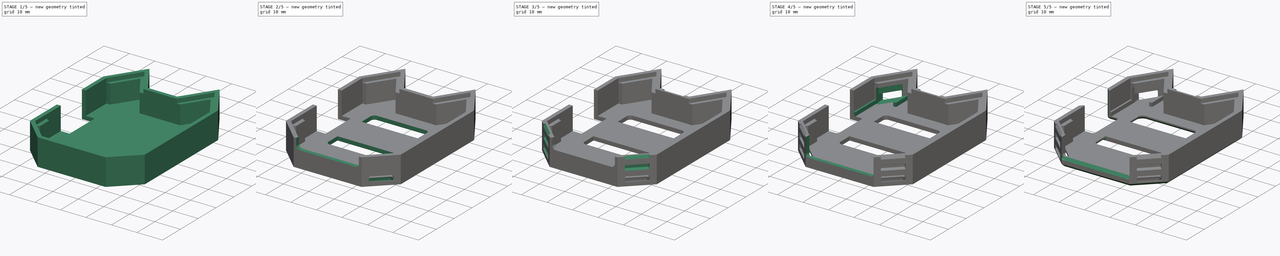
[diagram: build sequence overview — one tinted view per stage of 5, left to right]
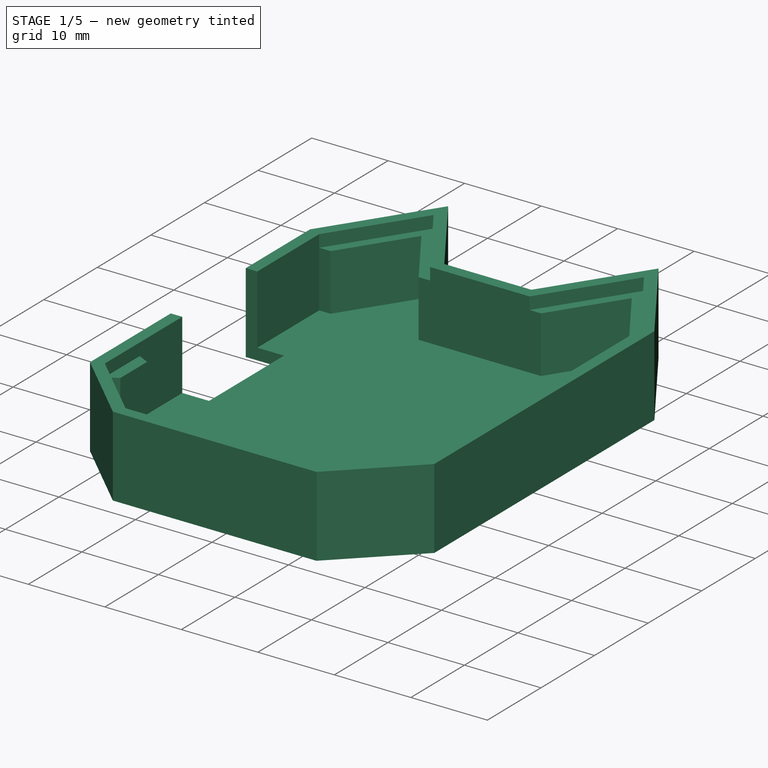
[diagram: stage 1 of 5 — iso view after this stage's code; geometry added in this stage tinted green]
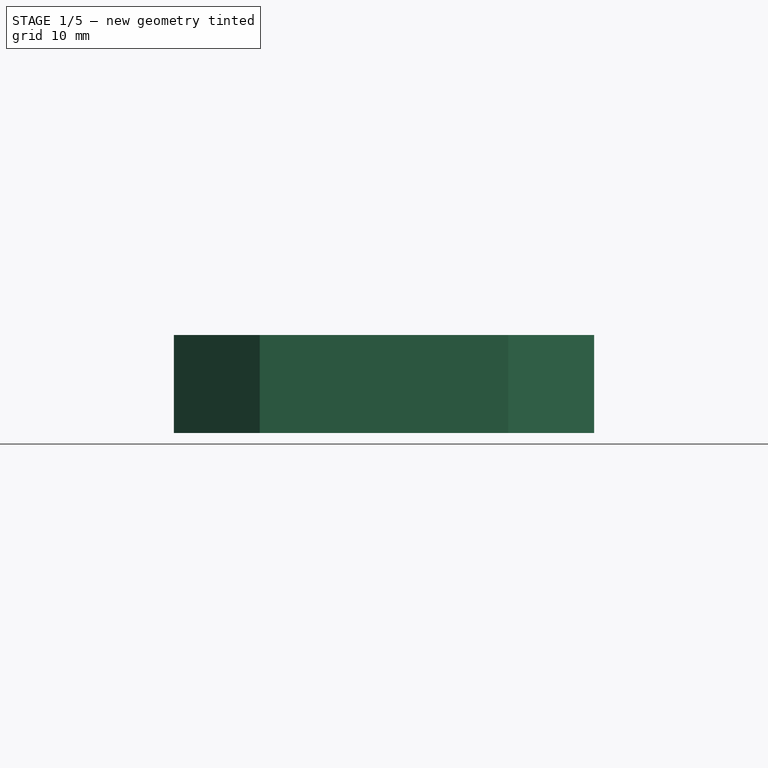
[diagram: stage 1 of 5 — front view after this stage's code; geometry added in this stage tinted green]
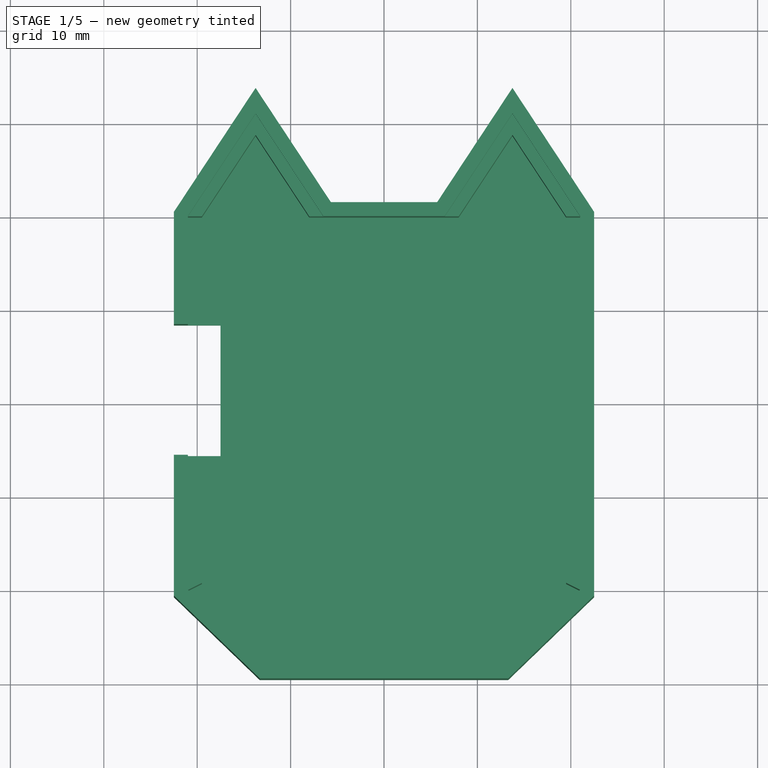
[diagram: stage 1 of 5 — top view after this stage's code; geometry added in this stage tinted green]
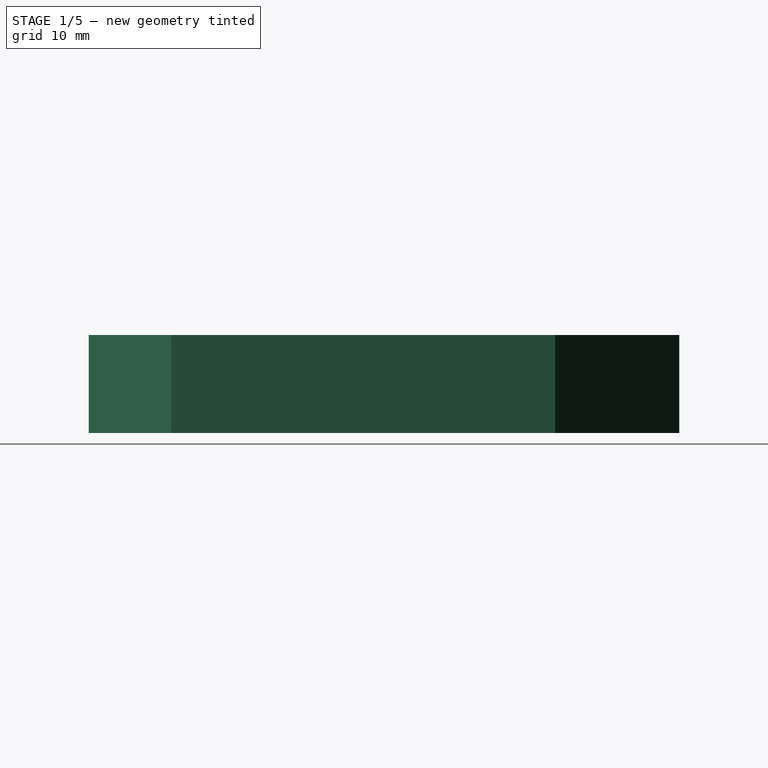
[diagram: stage 1 of 5 — right view after this stage's code; geometry added in this stage tinted green]
FCSTD DOCUMENT  (FreeCAD 0.20R29410 (Git))
Label: v1.0_Case-Bottom_v3-Nugget
License: All rights reserved
LicenseURL: http://en.wikipedia.org/wiki/All_rights_reserved
objects: Sketcher::SketchObject×15, Part::Feature×15, App::Part×11, PartDesign::Pocket×10, PartDesign::Pad×4, PartDesign::Plane×4, PartDesign::Chamfer×4, PartDesign::Mirrored×2, PartDesign::Groove×1, PartDesign::Fillet×1, PartDesign::Body×1
note: 77 computed .brp shape members not serialized (recipe doc carries the construction recipe); baked Part::Feature solids carry a one-line shape summary decoded from their .brp

FEATURE [Sketcher::SketchObject] Sketch
  FullyConstrained = false
  sketch-geometry (22):
    g0: LineSegment StartX=-21 StartY=20 StartZ=0 EndX=-13.75 EndY=31 EndZ=0
    g1: LineSegment StartX=-13.75 StartY=31 StartZ=0 EndX=-6.5 EndY=20 EndZ=0
    g2: LineSegment StartX=-6.5 StartY=20 StartZ=0 EndX=6.5 EndY=20 EndZ=0
    g3: LineSegment StartX=6.5 StartY=20 StartZ=0 EndX=13.75 EndY=31 EndZ=0
    g4: LineSegment StartX=13.75 StartY=31 StartZ=0 EndX=21 EndY=20 EndZ=0
    g5: LineSegment StartX=21 StartY=20 StartZ=0 EndX=21 EndY=-20 EndZ=0
    g6: LineSegment StartX=21 StartY=-20 StartZ=0 EndX=12.7 EndY=-28 EndZ=0
    g7: LineSegment StartX=12.7 StartY=-28 StartZ=0 EndX=-12.7 EndY=-28 EndZ=0
    g8: LineSegment StartX=-12.7 StartY=-28 StartZ=0 EndX=-21 EndY=-20 EndZ=0
    g9: LineSegment StartX=-21 StartY=-20 StartZ=0 EndX=-21 EndY=20 EndZ=0
    g10: LineSegment StartX=-22.5 StartY=20.4499 StartZ=0 EndX=-13.75 EndY=33.7257 EndZ=0
    g11: LineSegment StartX=-13.75 StartY=33.7257 StartZ=0 EndX=-5.69214 EndY=21.5 EndZ=0
    g12: LineSegment StartX=-5.69214 StartY=21.5 StartZ=0 EndX=5.69214 EndY=21.5 EndZ=0
    g13: LineSegment StartX=5.69214 StartY=21.5 StartZ=0 EndX=13.75 EndY=33.7257 EndZ=0
    g14: LineSegment StartX=13.75 StartY=33.7257 StartZ=0 EndX=22.5 EndY=20.4499 EndZ=0
    g15: LineSegment StartX=22.5 StartY=20.4499 StartZ=0 EndX=22.5 EndY=-20.6376 EndZ=0
    g16: LineSegment StartX=22.5 StartY=-20.6376 StartZ=0 EndX=13.3052 EndY=-29.5 EndZ=0
    g17: LineSegment StartX=13.3052 StartY=-29.5 StartZ=0 EndX=-13.3052 EndY=-29.5 EndZ=0
    g18: LineSegment StartX=-13.3052 StartY=-29.5 StartZ=0 EndX=-22.5 EndY=-20.6376 EndZ=0
    g19: LineSegment StartX=-22.5 StartY=-20.6376 StartZ=0 EndX=-22.5 EndY=20.4499 EndZ=0
    g20: LineSegment StartX=-13.741 StartY=-29.08 StartZ=0 EndX=-12.7 EndY=-28 EndZ=0
    g21: LineSegment StartX=-13.75 StartY=31 StartZ=0 EndX=-12.4976 EndY=31.8255 EndZ=0
  constraints (60):
    c: Coincident(g0,g1)
    c: Coincident(g1,g2)
    c: Coincident(g2,g3)
    c: Coincident(g3,g4)
    c: Coincident(g4,g5)
    c: Vertical(g5)
    c: Coincident(g5,g6)
    c: Coincident(g6,g7)
    c: Coincident(g7,g8)
    c: Coincident(g8,g9)
    c: Coincident(g9,g0)
    c: DistanceY(g9,g9) = 40
    c: DistanceY(g7,g0) = 59
    c: DistanceY(g6,g5) = 8
    c: DistanceX(g2,g2) = 13
    c: DistanceX(g6,g5) = 8.3
    c: Equal(g5,g9)
    c: Equal(g0,g1)
    c: Equal(g1,g3)
    c: Equal(g3,g4)
    c: Symmetric(g2,g1,g-2)
    c: Symmetric(g7,g6,g-2)
    c: Symmetric(g0,g4,g-2)
    c: Horizontal(g2,g4)
    c: DistanceX(g8,g5) = 42
    c: Symmetric(g0,g8,g-1)
    c: Coincident(g10,g11)
    c: Coincident(g11,g12)
    c: Coincident(g12,g13)
    c: Coincident(g13,g14)
    c: Coincident(g14,g15)
    c: Coincident(g15,g16)
    c: Coincident(g16,g17)
    c: Coincident(g17,g18)
    c: Coincident(g18,g19)
    c: Coincident(g19,g10)
    c: Parallel(g10,g0)
    c: Vertical(g19)
    c: Parallel(g4,g14)
    c: Vertical(g15)
    c: Parallel(g18,g8)
    c: Parallel(g6,g16)
    c: Symmetric(g11,g12,g-2)
    c: Symmetric(g17,g16,g-2)
    c: Equal(g19,g15)
    c: Equal(g16,g18)
    c: DistanceX(g18,g8) = 1.5
    c: DistanceY(g17,g7) = 1.5
    c: Perpendicular(g18,g20)
    c: PointOnObject(g20,g18)
    c: Distance(g20) = 1.5
    c: Coincident(g20,g7)
    c: PointOnObject(g21,g11)
    c: Perpendicular(g1,g21)
    c: Distance(g21) = 1.5
    c: Horizontal(g13,g10)
    c: Vertical(g10,g0)
    c: DistanceY(g1,g11) = 1.5
    c: Parallel(g1,g11)
    c: Coincident(g21,g0)
FEATURE [PartDesign::Pad] Pad
  AllowMultiFace = false
  Direction = (0,0,1)
  Length = 10.5
  Length2 = 100
  Profile = -> Sketch
  Type = 0
FEATURE [Sketcher::SketchObject] CopySketch001
  FullyConstrained = true
  MapMode = 5
  Placement = pos=(0,0,10.5) rot=(0,0,1;0rad)
  Support = -> [Pad]
  sketch-geometry (10):
    g0: LineSegment StartX=-21 StartY=20 StartZ=0 EndX=-13.75 EndY=31 EndZ=0
    g1: LineSegment StartX=-13.75 StartY=31 StartZ=0 EndX=-6.5 EndY=20 EndZ=0
    g2: LineSegment StartX=-6.5 StartY=20 StartZ=0 EndX=6.5 EndY=20 EndZ=0
    g3: LineSegment StartX=6.5 StartY=20 StartZ=0 EndX=13.75 EndY=31 EndZ=0
    g4: LineSegment StartX=13.75 StartY=31 StartZ=0 EndX=21 EndY=20 EndZ=0
    g5: LineSegment StartX=21 StartY=20 StartZ=0 EndX=21 EndY=-20 EndZ=0
    g6: LineSegment StartX=21 StartY=-20 StartZ=0 EndX=12.7 EndY=-28 EndZ=0
    g7: LineSegment StartX=12.7 StartY=-28 StartZ=0 EndX=-12.7 EndY=-28 EndZ=0
    g8: LineSegment StartX=-12.7 StartY=-28 StartZ=0 EndX=-21 EndY=-20 EndZ=0
    g9: LineSegment StartX=-21 StartY=-20 StartZ=0 EndX=-21 EndY=20 EndZ=0
  constraints (26):
    c: Coincident(g0,g1)
    c: Coincident(g1,g2)
    c: Coincident(g2,g3)
    c: Coincident(g3,g4)
    c: Coincident(g4,g5)
    c: Vertical(g5)
    c: Coincident(g5,g6)
    c: Coincident(g6,g7)
    c: Coincident(g7,g8)
    c: Coincident(g8,g9)
    c: Coincident(g9,g0)
    c: DistanceY(g9,g9) = 40
    c: DistanceY(g7,g0) = 59
    c: DistanceY(g6,g5) = 8
    c: DistanceX(g2,g2) = 13
    c: DistanceX(g6,g5) = 8.3
    c: Equal(g5,g9)
    c: Equal(g0,g1)
    c: Equal(g1,g3)
    c: Equal(g3,g4)
    c: Symmetric(g2,g1,g-2)
    c: Symmetric(g7,g6,g-2)
    c: Symmetric(g0,g4,g-2)
    c: Horizontal(g2,g4)
    c: DistanceX(g8,g5) = 42
    c: Symmetric(g0,g8,g-1)
FEATURE [PartDesign::Pocket] Pocket
  AllowMultiFace = false
  BaseFeature = -> Pad
  Direction = (0,0,-1)
  Length = 9
  Length2 = 100
  Profile = -> CopySketch001
  Type = 0
FEATURE [Sketcher::SketchObject] Sketch001
  ExternalGeometry = -> [Pocket]
  FullyConstrained = true
  MapMode = 5
  Placement = pos=(0,0,1.5) rot=(0,0,1;0rad)
  Support = -> [Pocket]
  sketch-geometry (22):
    g0: LineSegment StartX=-21 StartY=20 StartZ=0 EndX=-13.75 EndY=31 EndZ=0
    g1: LineSegment StartX=-13.75 StartY=31 StartZ=0 EndX=-6.5 EndY=20 EndZ=0
    g2: LineSegment StartX=-6.5 StartY=20 StartZ=0 EndX=-8 EndY=20 EndZ=0
    g3: LineSegment StartX=-8 StartY=20 StartZ=0 EndX=-13.75 EndY=28.7241 EndZ=0
    g4: LineSegment StartX=-13.75 StartY=28.7241 StartZ=0 EndX=-19.5 EndY=20 EndZ=0
    g5: LineSegment StartX=-19.5 StartY=20 StartZ=0 EndX=-21 EndY=20 EndZ=0
    g6: LineSegment StartX=6.5 StartY=20 StartZ=0 EndX=13.75 EndY=31 EndZ=0
    g7: LineSegment StartX=13.75 StartY=31 StartZ=0 EndX=21 EndY=20 EndZ=0
    g8: LineSegment StartX=21 StartY=20 StartZ=0 EndX=19.5 EndY=20 EndZ=0
    g9: LineSegment StartX=19.5 StartY=20 StartZ=0 EndX=13.75 EndY=28.7241 EndZ=0
    g10: LineSegment StartX=13.75 StartY=28.7241 StartZ=0 EndX=8 EndY=20 EndZ=0
    g11: LineSegment StartX=8 StartY=20 StartZ=0 EndX=6.5 EndY=20 EndZ=0
    g12: LineSegment StartX=-21 StartY=-13.5 StartZ=0 EndX=-21 EndY=-20 EndZ=0
    g13: LineSegment StartX=-21 StartY=-20 StartZ=0 EndX=-19.5 EndY=-19.25 EndZ=0
    g14: LineSegment StartX=-19.5 StartY=-19.25 StartZ=0 EndX=-19.5 EndY=-14.25 EndZ=0
    g15: LineSegment StartX=-19.5 StartY=-14.25 StartZ=0 EndX=-21 EndY=-13.5 EndZ=0
    g16: LineSegment StartX=19.5 StartY=-14.25 StartZ=0 EndX=21 EndY=-13.5 EndZ=0
    g17: LineSegment StartX=21 StartY=-13.5 StartZ=0 EndX=21 EndY=-20 EndZ=0
    g18: LineSegment StartX=21 StartY=-20 StartZ=0 EndX=19.5 EndY=-19.25 EndZ=0
    g19: LineSegment StartX=19.5 StartY=-19.25 StartZ=0 EndX=19.5 EndY=-14.25 EndZ=0
    g20: LineSegment StartX=-21 StartY=-16.75 StartZ=0 EndX=-19.5 EndY=-16.75 EndZ=0
    g21: LineSegment StartX=19.5 StartY=-16.75 StartZ=0 EndX=21 EndY=-16.75 EndZ=0
  constraints (59):
    c: Coincident(g0,g1)
    c: Coincident(g1,g2)
    c: Horizontal(g2)
    c: Coincident(g2,g3)
    c: Coincident(g3,g4)
    c: Coincident(g4,g5)
    c: Coincident(g5,g0)
    c: Coincident(g6,g7)
    c: Coincident(g7,g8)
    c: Coincident(g8,g9)
    c: Coincident(g9,g10)
    c: Coincident(g10,g11)
    c: Coincident(g11,g6)
    c: Horizontal(g5)
    c: Horizontal(g11)
    c: Horizontal(g8)
    c: Equal(g4,g3)
    c: Equal(g3,g9)
    c: Equal(g9,g10)
    c: Equal(g7,g6)
    c: Equal(g6,g1)
    c: Equal(g1,g0)
    c: Horizontal(g4,g1)
    c: Horizontal(g10,g8)
    c: Equal(g5,g2)
    c: Equal(g2,g11)
    c: Equal(g11,g8)
    c: Parallel(g1,g3)
    c: Parallel(g9,g7)
    c: Coincident(g0,g-4)
    c: DistanceX(g11,g11) = 1.5
    c: Symmetric(g1,g6,g-2)
    c: Coincident(g-4,g1)
    c: Vertical(g12)
    c: Coincident(g12,g13)
    c: Coincident(g13,g14)
    c: Vertical(g14)
    c: Coincident(g14,g15)
    c: Coincident(g15,g12)
    c: Coincident(g16,g17)
    c: Vertical(g17)
    c: Coincident(g17,g18)
    c: Coincident(g18,g19)
    c: Coincident(g19,g16)
    c: Vertical(g19)
    c: Symmetric(g12,g12,g20)
    c: Symmetric(g14,g13,g20)
    c: Symmetric(g16,g18,g21)
    c: Symmetric(g17,g16,g21)
    c: Horizontal(g21)
    c: Horizontal(g20)
    c: Equal(g19,g14)
    c: Equal(g17,g12)
    c: Equal(g20,g21)
    c: Symmetric(g21,g20,g-2)
    c: Coincident(g17,g-3)
    c: DistanceX(g21,g21) = 1.5
    c: DistanceY(g17,g17) = 6.5
    c: DistanceY(g19,g19) = 5
FEATURE [PartDesign::Pad] Pad001
  AllowMultiFace = false
  BaseFeature = -> Pocket
  Direction = (0,0,1)
  Length = 7.4
  Length2 = 100
  Profile = -> Sketch001
  Type = 0
FEATURE [Sketcher::SketchObject] Sketch007
  FullyConstrained = true
  MapMode = 5
  Placement = pos=(0,0,0) rot=(1,0,0;3.14159rad)
  sketch-geometry (18):
    g0: LineSegment StartX=-11.73 StartY=11.5 StartZ=0 EndX=7.27 EndY=11.5 EndZ=0
    g1: LineSegment StartX=8.77 StartY=10 StartZ=0 EndX=8.77 EndY=5 EndZ=0
    g2: LineSegment StartX=8.77 StartY=5 StartZ=0 EndX=-13.23 EndY=5 EndZ=0
    g3: LineSegment StartX=-13.23 StartY=5 StartZ=0 EndX=-13.23 EndY=10 EndZ=0
    g4: LineSegment StartX=-13.23 StartY=-8.5 StartZ=0 EndX=8.77 EndY=-8.5 EndZ=0
    g5: LineSegment StartX=8.77 StartY=-8.5 StartZ=0 EndX=8.77 EndY=-13.5 EndZ=0
    g6: LineSegment StartX=7.27 StartY=-15 StartZ=0 EndX=-11.73 EndY=-15 EndZ=0
    g7: LineSegment StartX=-13.23 StartY=-13.5 StartZ=0 EndX=-13.23 EndY=-8.5 EndZ=0
    g8: GeomPoint X=8.77 Y=8.25 Z=0
    g9: GeomPoint X=8.77 Y=-11.75 Z=0
    g10: ArcOfCircle CenterX=-11.73 CenterY=10 CenterZ=0 NormalX=0 NormalY=0 NormalZ=1 AngleXU=0 Radius=1.5 StartAngle=1.5708 EndAngle=3.14159
    g11: GeomPoint X=-13.23 Y=11.5 Z=0
    g12: ArcOfCircle CenterX=7.27 CenterY=10 CenterZ=0 NormalX=0 NormalY=0 NormalZ=1 AngleXU=0 Radius=1.5 StartAngle=0 EndAngle=1.5708
    g13: GeomPoint X=8.77 Y=11.5 Z=0
    g14: ArcOfCircle CenterX=-11.73 CenterY=-13.5 CenterZ=0 NormalX=0 NormalY=0 NormalZ=1 AngleXU=0 Radius=1.5 StartAngle=3.14159 EndAngle=4.71239
    g15: GeomPoint X=-13.23 Y=-15 Z=0
    g16: ArcOfCircle CenterX=7.27 CenterY=-13.5 CenterZ=0 NormalX=0 NormalY=0 NormalZ=1 AngleXU=0 Radius=1.5 StartAngle=4.71239 EndAngle=6.28319
    g17: GeomPoint X=8.77 Y=-15 Z=0
  constraints (42):
    c: Coincident(g1,g2)
    c: Coincident(g2,g3)
    c: Horizontal(g0)
    c: Horizontal(g2)
    c: Vertical(g1)
    c: Vertical(g3)
    c: Coincident(g4,g5)
    c: Coincident(g7,g4)
    c: Horizontal(g4)
    c: Horizontal(g6)
    c: Vertical(g5)
    c: Vertical(g7)
    c: Equal(g4,g2)
    c: DistanceX(g4,g4) = 22
    c: Vertical(g4,g1)
    c: DistanceY(g17,g5) = 6.5
    c: Symmetric(g4,g17,g9)
    c: Symmetric(g1,g13,g8)
    c: DistanceY(g9,g8) = 20
    c: DistanceY(g-1,g1) = 5
    c: DistanceX(g2,g-1) = 13.23
    c: PointOnObject(g11,g3)
    c: PointOnObject(g11,g0)
    c: Tangent(g3,g10) = 1.5708
    c: Tangent(g0,g10) = 1.5708
    c: PointOnObject(g13,g0)
    c: PointOnObject(g13,g1)
    c: Tangent(g0,g12) = 1.5708
    c: Tangent(g1,g12) = 1.5708
    c: PointOnObject(g15,g7)
    c: PointOnObject(g15,g6)
    c: Tangent(g7,g14) = 1.5708
    c: Tangent(g6,g14) = 1.5708
    c: PointOnObject(g17,g5)
    c: PointOnObject(g17,g6)
    c: Tangent(g5,g16) = 1.5708
    c: Tangent(g6,g16) = 1.5708
    c: Equal(g12,g10)
    c: Equal(g10,g14)
    c: Equal(g14,g16)
    c: Radius(g12) = 1.5
    c: Equal(g7,g3)
FEATURE [Sketcher::SketchObject] Sketch006
  ExternalGeometry = -> [Pad001]
  FullyConstrained = true
  MapMode = 5
  Placement = pos=(-22.5,0,0) rot=(0.57735,-0.57735,-0.57735;2.0944rad)
  sketch-geometry (5):
    g0: LineSegment StartX=-1.44986 StartY=0 StartZ=0 EndX=-1.44986 EndY=10.5 EndZ=0
    g1: LineSegment StartX=-8.44986 StartY=10.5 StartZ=0 EndX=5.55014 EndY=10.5 EndZ=0
    g2: LineSegment StartX=5.55014 StartY=10.5 StartZ=0 EndX=5.55014 EndY=0 EndZ=0
    g3: LineSegment StartX=5.55014 StartY=0 StartZ=0 EndX=-8.44986 EndY=0 EndZ=0
    g4: LineSegment StartX=-8.44986 StartY=0 StartZ=0 EndX=-8.44986 EndY=10.5 EndZ=0
  constraints (15):
    c: PointOnObject(g0,g-1)
    c: Vertical(g0)
    c: Coincident(g1,g2)
    c: Coincident(g4,g1)
    c: Horizontal(g1)
    c: Horizontal(g3)
    c: Vertical(g2)
    c: Vertical(g4)
    c: Symmetric(g1,g1,g0)
    c: PointOnObject(g0,g-3)
    c: DistanceX(g1,g1) = 14
    c: PointOnObject(g3,g-1)
    c: Coincident(g3,g2)
    c: Coincident(g4,g3)
    c: DistanceX(g-3,g1) = 12
FEATURE [PartDesign::Pocket] Pocket001
  BaseFeature = -> Pad001
  Direction = (1,0,0)
  Length = 5
  Length2 = 100
  Profile = -> Sketch006
  Type = 0
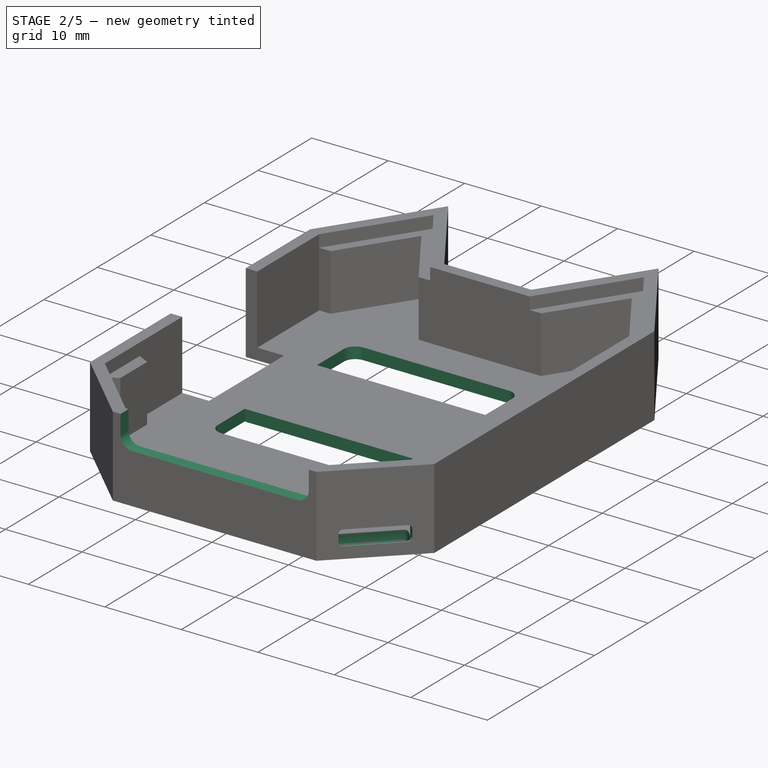
[diagram: stage 2 of 5 — iso view after this stage's code; geometry added in this stage tinted green]
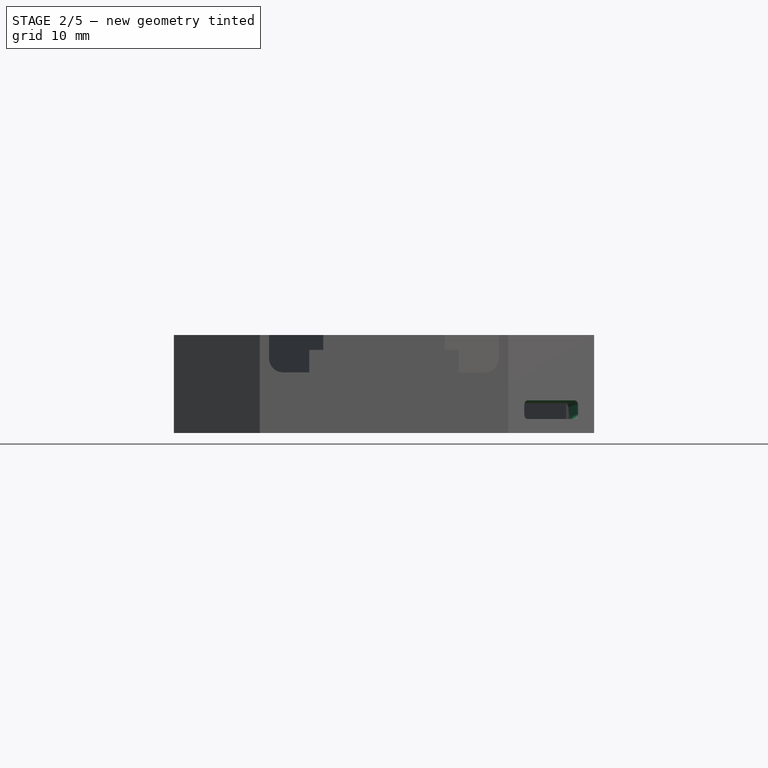
[diagram: stage 2 of 5 — front view after this stage's code; geometry added in this stage tinted green]
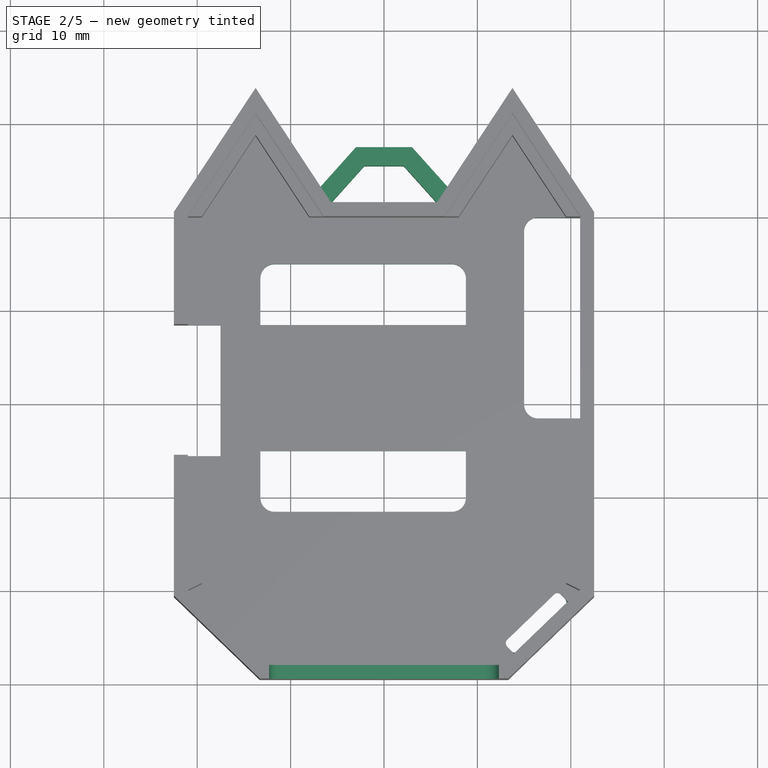
[diagram: stage 2 of 5 — top view after this stage's code; geometry added in this stage tinted green]
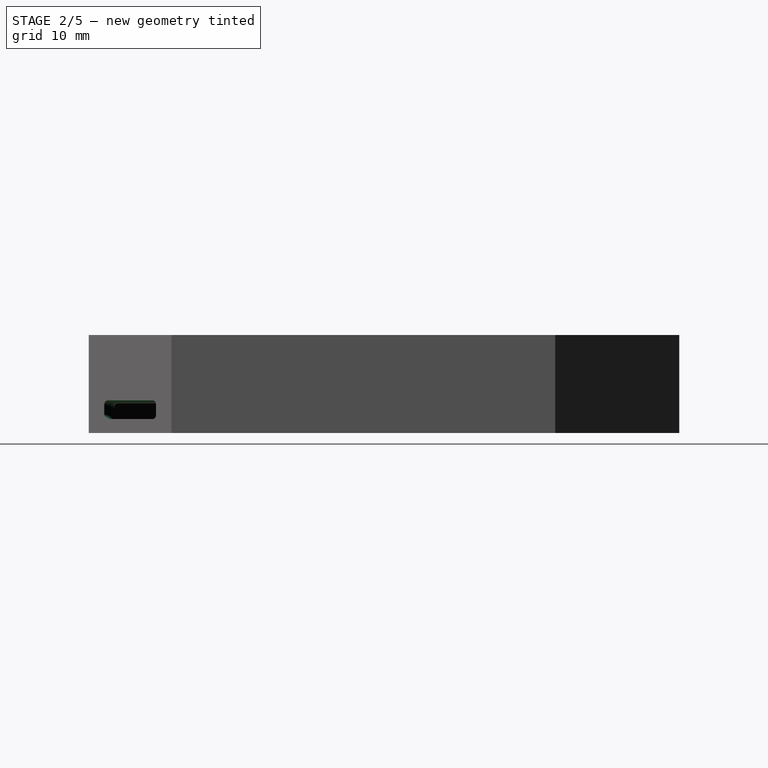
[diagram: stage 2 of 5 — right view after this stage's code; geometry added in this stage tinted green]
FEATURE [Sketcher::SketchObject] Sketch008
  ExternalGeometry = -> [Pocket001]
  FullyConstrained = true
  MapMode = 5
  Placement = pos=(0,0,0) rot=(1,0,0;3.14159rad)
  sketch-geometry (8):
    g0: LineSegment StartX=21 StartY=-20 StartZ=0 EndX=16.5 EndY=-20 EndZ=0
    g1: LineSegment StartX=15 StartY=-18.5 StartZ=0 EndX=15 EndY=0 EndZ=0
    g2: LineSegment StartX=16.5 StartY=1.5 StartZ=0 EndX=21 EndY=1.5 EndZ=0
    g3: LineSegment StartX=21 StartY=1.5 StartZ=0 EndX=21 EndY=-20 EndZ=0
    g4: ArcOfCircle CenterX=16.5 CenterY=3e-16 CenterZ=0 NormalX=0 NormalY=0 NormalZ=1 AngleXU=0 Radius=1.5 StartAngle=1.5708 EndAngle=3.14159
    g5: GeomPoint X=15 Y=1.5 Z=0
    g6: ArcOfCircle CenterX=16.5 CenterY=-18.5 CenterZ=0 NormalX=0 NormalY=0 NormalZ=1 AngleXU=0 Radius=1.5 StartAngle=3.14159 EndAngle=4.71239
    g7: GeomPoint X=15 Y=-20 Z=0
  constraints (20):
    c: Coincident(g2,g3)
    c: Coincident(g3,g0)
    c: Horizontal(g0)
    c: Horizontal(g2)
    c: Vertical(g1)
    c: Vertical(g3)
    c: DistanceY(g7,g5) = 21.5
    c: DistanceX(g5,g2) = 6
    c: DistanceY(g-1,g5) = 1.5
    c: DistanceX(g-1,g5) = 15
    c: PointOnObject(g5,g1)
    c: PointOnObject(g5,g2)
    c: Tangent(g1,g4) = 1.5708
    c: Tangent(g2,g4) = 1.5708
    c: PointOnObject(g7,g1)
    c: PointOnObject(g7,g0)
    c: Tangent(g1,g6) = 1.5708
    c: Tangent(g0,g6) = 1.5708
    c: Equal(g6,g4)
    c: Radius(g6) = 1.5
FEATURE [PartDesign::Pocket] Pocket002
  BaseFeature = -> Pocket001
  Direction = (0,0,1)
  Length = 5
  Length2 = 100
  Profile = -> Sketch008
  Type = 0
FEATURE [PartDesign::Pocket] Pocket003
  BaseFeature = -> Pocket002
  Direction = (0,0,1)
  Length = 5
  Length2 = 100
  Profile = -> Sketch007
  Type = 0
FEATURE [PartDesign::Plane] DatumPlane001
  Length = 60
  MapMode = 5
  Placement = pos=(0,0,0) rot=(1,0,0;3.14159rad)
  ResizeMode = 0
  Width = 60
FEATURE [Sketcher::SketchObject] Sketch017
  ExternalGeometry = -> [Pocket003]
  FullyConstrained = true
  MapMode = 5
  Placement = pos=(0,0,0) rot=(1,0,0;3.14159rad)
  Support = -> [DatumPlane001]
  sketch-geometry (10):
    g0: LineSegment StartX=-5.69214 StartY=-21.5 StartZ=0 EndX=-6.83022 EndY=-23.2267 EndZ=0
    g1: LineSegment StartX=-6.83022 StartY=-23.2267 StartZ=0 EndX=-3 EndY=-27.5 EndZ=0
    g2: LineSegment StartX=-3 StartY=-27.5 StartZ=0 EndX=3 EndY=-27.5 EndZ=0
    g3: LineSegment StartX=3 StartY=-27.5 StartZ=0 EndX=6.83022 EndY=-23.2267 EndZ=0
    g4: LineSegment StartX=6.83022 StartY=-23.2267 StartZ=0 EndX=5.69214 EndY=-21.5 EndZ=0
    g5: LineSegment StartX=5.69214 StartY=-21.5 StartZ=0 EndX=2.10684 EndY=-25.5 EndZ=0
    g6: LineSegment StartX=2.10684 StartY=-25.5 StartZ=0 EndX=-2.10684 EndY=-25.5 EndZ=0
    g7: LineSegment StartX=-2.10684 StartY=-25.5 StartZ=0 EndX=-5.69214 EndY=-21.5 EndZ=0
    g8: LineSegment StartX=2.10684 StartY=-27.5 StartZ=0 EndX=2.10684 EndY=-25.5 EndZ=0
    g9: LineSegment StartX=2.10684 StartY=-25.5 StartZ=0 EndX=3.59614 EndY=-26.8349 EndZ=0
  constraints (26):
    c: Coincident(g0,g1)
    c: Coincident(g1,g2)
    c: Coincident(g2,g3)
    c: Coincident(g3,g4)
    c: Coincident(g4,g5)
    c: Coincident(g5,g6)
    c: Coincident(g6,g7)
    c: Coincident(g7,g0)
    c: Symmetric(g6,g5,g-2)
    c: Symmetric(g1,g2,g-2)
    c: Parallel(g4,g-3)
    c: Parallel(g0,g-4)
    c: Symmetric(g4,g0,g-2)
    c: Parallel(g3,g5)
    c: Coincident(g8,g5)
    c: Coincident(g9,g5)
    c: PointOnObject(g8,g2)
    c: PointOnObject(g9,g3)
    c: Equal(g9,g8)
    c: Parallel(g1,g7)
    c: Vertical(g8)
    c: DistanceY(g8,g8) = 2
    c: DistanceX(g2,g2) = 6
    c: Coincident(g0,g-4)
    c: DistanceY(g5,g4) = 4
    c: Perpendicular(g5,g9)
FEATURE [PartDesign::Pad] Pad002
  BaseFeature = -> Pocket003
  Direction = (0,0,-1)
  Length = 4
  Length2 = 100
  Profile = -> Sketch017
  Reversed = true
  Type = 0
FEATURE [Sketcher::SketchObject] Sketch018
  ExternalGeometry = -> [Pad002]
  FullyConstrained = true
  MapMode = 5
  Placement = pos=(0,-29.5,0) rot=(1,0,0;1.5708rad)
  Support = -> [Pad002]
  sketch-geometry (8):
    g0: LineSegment StartX=-12.3052 StartY=10.5 StartZ=0 EndX=12.3052 EndY=10.5 EndZ=0
    g1: LineSegment StartX=12.3052 StartY=10.5 StartZ=0 EndX=12.3052 EndY=8 EndZ=0
    g2: LineSegment StartX=10.8052 StartY=6.5 StartZ=0 EndX=-10.8052 EndY=6.5 EndZ=0
    g3: LineSegment StartX=-12.3052 StartY=8 StartZ=0 EndX=-12.3052 EndY=10.5 EndZ=0
    g4: ArcOfCircle CenterX=-10.8052 CenterY=8 CenterZ=0 NormalX=0 NormalY=0 NormalZ=1 AngleXU=0 Radius=1.5 StartAngle=3.14159 EndAngle=4.71239
    g5: GeomPoint X=-12.3052 Y=6.5 Z=0
    g6: ArcOfCircle CenterX=10.8052 CenterY=8 CenterZ=0 NormalX=0 NormalY=0 NormalZ=1 AngleXU=0 Radius=1.5 StartAngle=4.71239 EndAngle=6.28319
    g7: GeomPoint X=12.3052 Y=6.5 Z=0
  constraints (19):
    c: Coincident(g0,g1)
    c: Coincident(g3,g0)
    c: Horizontal(g2)
    c: Vertical(g1)
    c: Vertical(g3)
    c: PointOnObject(g5,g3)
    c: PointOnObject(g5,g2)
    c: Tangent(g3,g4) = 1.5708
    c: Tangent(g2,g4) = 1.5708
    c: PointOnObject(g7,g1)
    c: PointOnObject(g7,g2)
    c: Tangent(g1,g6) = 1.5708
    c: Tangent(g2,g6) = 1.5708
    c: Equal(g6,g4)
    c: Radius(g4) = 1.5
    c: Symmetric(g0,g0,g-2)
    c: Horizontal(g0,g-3)
    c: DistanceX(g0,g-3) = 1
    c: DistanceY(g2,g0) = 4
FEATURE [PartDesign::Pocket] Pocket004
  BaseFeature = -> Pad002
  Direction = (0,1,-2e-16)
  Length = 5
  Length2 = 5
  Profile = -> Sketch018
  ReferenceAxis = -> Sketch018 [N_Axis]
  Type = 0
FEATURE [Sketcher::SketchObject] Sketch019
  ExternalGeometry = -> [Pocket004]
  FullyConstrained = true
  MapMode = 5
  Placement = pos=(21.1478,-21.9409,0) rot=(0.868554,0.350439,0.350439;1.71126rad)
  Support = -> [Pocket004]
  sketch-geometry (14):
    g0: LineSegment StartX=-8.00725 StartY=3.5 StartZ=0 EndX=-1.00725 EndY=3.5 EndZ=0
    g1: LineSegment StartX=-0.507245 StartY=3 StartZ=0 EndX=-0.507245 EndY=2 EndZ=0
    g2: LineSegment StartX=-1.00725 StartY=1.5 StartZ=0 EndX=-8.00725 EndY=1.5 EndZ=0
    g3: LineSegment StartX=-8.50725 StartY=2 StartZ=0 EndX=-8.50725 EndY=3 EndZ=0
    g4: ArcOfCircle CenterX=-8.00725 CenterY=3 CenterZ=0 NormalX=0 NormalY=0 NormalZ=1 AngleXU=0 Radius=0.5 StartAngle=1.5708 EndAngle=3.14159
    g5: GeomPoint X=-8.50725 Y=3.5 Z=0
    g6: ArcOfCircle CenterX=-1.00725 CenterY=3 CenterZ=0 NormalX=0 NormalY=0 NormalZ=1 AngleXU=0 Radius=0.5 StartAngle=0 EndAngle=1.5708
    g7: GeomPoint X=-0.507245 Y=3.5 Z=0
    g8: ArcOfCircle CenterX=-1.00725 CenterY=2 CenterZ=0 NormalX=0 NormalY=0 NormalZ=1 AngleXU=0 Radius=0.5 StartAngle=4.71239 EndAngle=6.28319
    g9: GeomPoint X=-0.507245 Y=1.5 Z=0
    g10: ArcOfCircle CenterX=-8.00725 CenterY=2 CenterZ=0 NormalX=0 NormalY=0 NormalZ=1 AngleXU=0 Radius=0.5 StartAngle=3.14159 EndAngle=4.71239
    g11: GeomPoint X=-8.50725 Y=1.5 Z=0
    g12: GeomPoint X=-4.50725 Y=2.5 Z=0
    g13: GeomPoint X=-4.50725 Y=-3e-16 Z=0
  constraints (30):
    c: Horizontal(g0)
    c: Horizontal(g2)
    c: Vertical(g1)
    c: Vertical(g3)
    c: PointOnObject(g5,g3)
    c: PointOnObject(g5,g0)
    c: Tangent(g3,g4) = 1.5708
    c: Tangent(g0,g4) = 1.5708
    c: PointOnObject(g7,g0)
    c: PointOnObject(g7,g1)
    c: Tangent(g0,g6) = 1.5708
    c: Tangent(g1,g6) = 1.5708
    c: PointOnObject(g9,g1)
    c: PointOnObject(g9,g2)
    c: Tangent(g1,g8) = 1.5708
    c: Tangent(g2,g8) = 1.5708
    c: PointOnObject(g11,g3)
    c: PointOnObject(g11,g2)
    c: Tangent(g3,g10) = 1.5708
    c: Tangent(g2,g10) = 1.5708
    c: Equal(g10,g4)
    c: Equal(g4,g6)
    c: Equal(g6,g8)
    c: Radius(g6) = 0.5
    c: DistanceY(g2,g0) = 2
    c: Symmetric(g8,g4,g12)
    c: Symmetric(g-3,g-3,g13)
    c: Vertical(g12,g13)
    c: DistanceY(g-1,g2) = 1.5
    c: DistanceX(g5,g7) = 8
FEATURE [PartDesign::Groove] Groove
  Angle = 360
  Axis = (0.719999,0.693975,-1e-16)
  Base = (21.1478,-21.9409,0)
  BaseFeature = -> Pocket004
  Profile = -> Sketch019
  ReferenceAxis = -> Sketch019 [H_Axis]
  Reversed = true
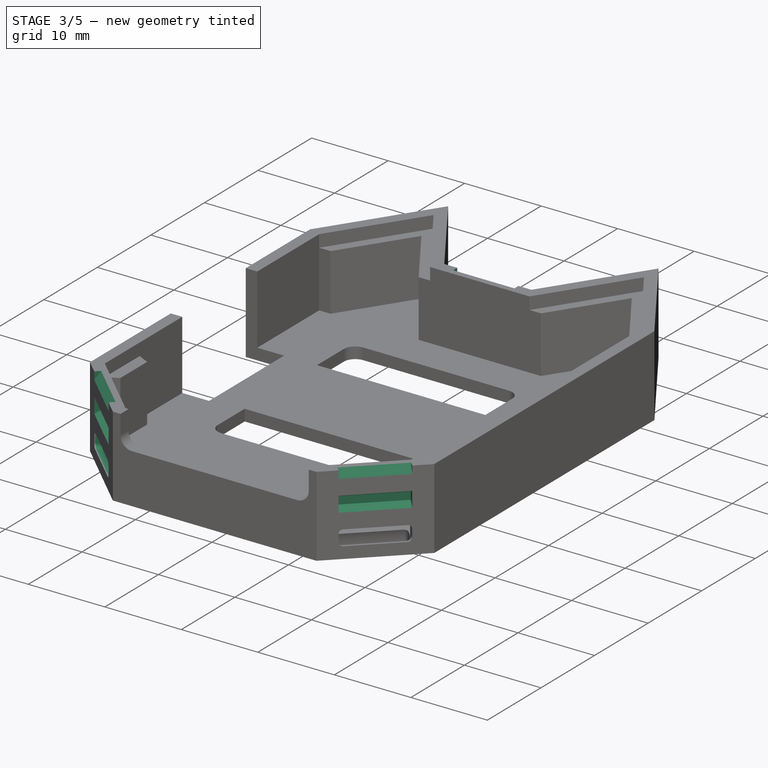
[diagram: stage 3 of 5 — iso view after this stage's code; geometry added in this stage tinted green]
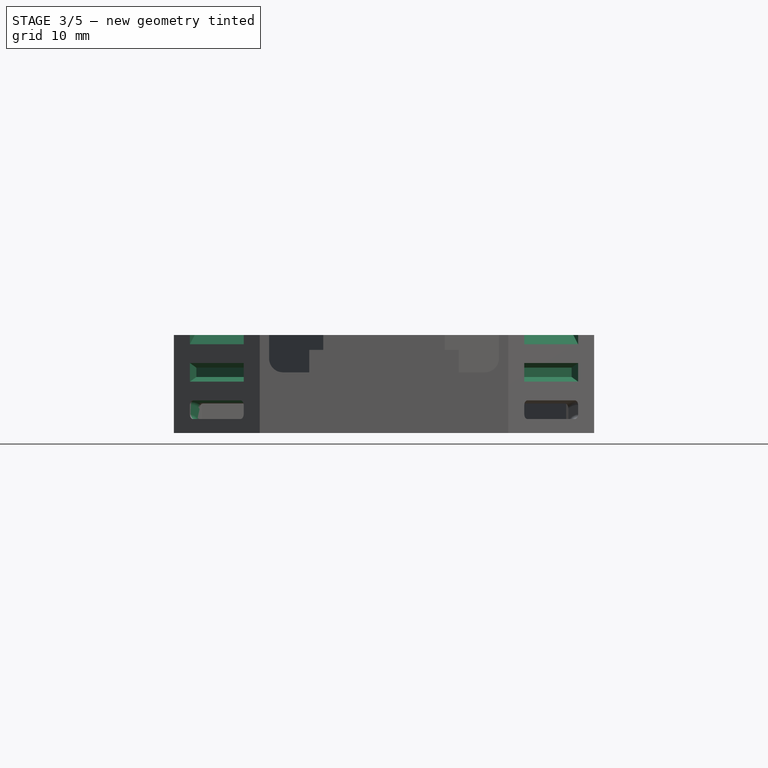
[diagram: stage 3 of 5 — front view after this stage's code; geometry added in this stage tinted green]
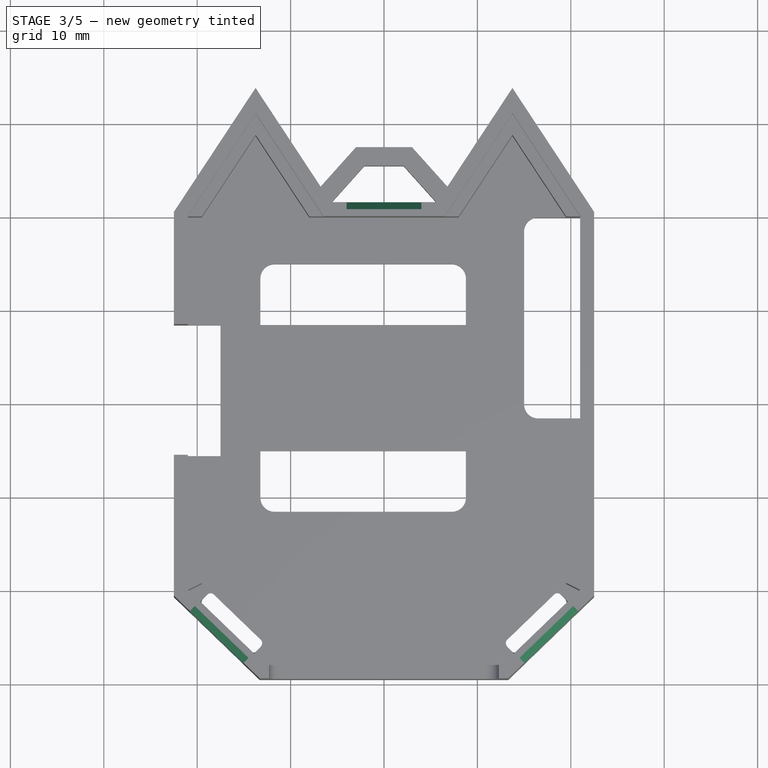
[diagram: stage 3 of 5 — top view after this stage's code; geometry added in this stage tinted green]
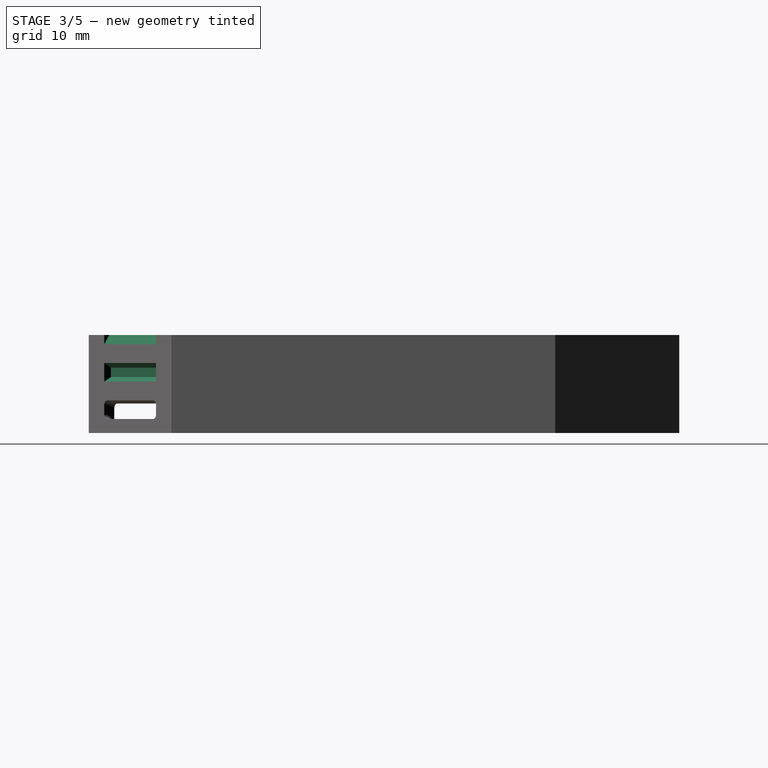
[diagram: stage 3 of 5 — right view after this stage's code; geometry added in this stage tinted green]
FEATURE [PartDesign::Mirrored] Mirrored
  BaseFeature = -> Groove
  MirrorPlane = -> YZ_Plane
  Originals = -> [Groove]
FEATURE [PartDesign::Plane] DatumPlane
  Length = 74.4708
  MapMode = 45
  Placement = pos=(1.3e-15,20,10.5) rot=(0.57735,0.57735,0.57735;2.0944rad)
  ResizeMode = 0
  Support = -> [Mirrored]
  Width = 61.2451
FEATURE [Sketcher::SketchObject] Sketch020
  ExternalGeometry = -> [Mirrored]
  FullyConstrained = true
  MapMode = 5
  Placement = pos=(1.3e-15,20,10.5) rot=(0.57735,0.57735,0.57735;2.0944rad)
  Support = -> [DatumPlane]
  sketch-geometry (8):
    g0: LineSegment StartX=1.5 StartY=-3 StartZ=0 EndX=1.5 EndY=-5 EndZ=0
    g1: LineSegment StartX=1.5 StartY=-5 StartZ=0 EndX=0.5 EndY=-4.5 EndZ=0
    g2: LineSegment StartX=0.5 StartY=-4.5 StartZ=0 EndX=0.5 EndY=-3.5 EndZ=0
    g3: LineSegment StartX=0.5 StartY=-3.5 StartZ=0 EndX=1.5 EndY=-3 EndZ=0
    g4: LineSegment StartX=0.5 StartY=-4 StartZ=0 EndX=1.5 EndY=-4 EndZ=0
    g5: LineSegment StartX=0.75 StartY=0 StartZ=0 EndX=1.5 EndY=0 EndZ=0
    g6: LineSegment StartX=1.5 StartY=-1 StartZ=0 EndX=0.75 EndY=0 EndZ=0
    g7: LineSegment StartX=1.5 StartY=0 StartZ=0 EndX=1.5 EndY=-1 EndZ=0
  constraints (22):
    c: Vertical(g0)
    c: Coincident(g0,g1)
    c: Coincident(g1,g2)
    c: Vertical(g2)
    c: Coincident(g2,g3)
    c: Coincident(g3,g0)
    c: DistanceX(g4,g4) = 1
    c: Symmetric(g2,g1,g4)
    c: Symmetric(g0,g0,g4)
    c: Horizontal(g4)
    c: DistanceY(g0,g0) = 2
    c: DistanceY(g2,g2) = 1
    c: DistanceY(g0,g-3) = 3
    c: Horizontal(g5)
    c: Coincident(g6,g5)
    c: Coincident(g7,g5)
    c: Coincident(g7,g6)
    c: Vertical(g7)
    c: DistanceY(g7,g7) = 1
    c: Vertical(g6,g0)
    c: DistanceX(g5,g5) = 0.75
    c: Coincident(g5,g-4)
FEATURE [PartDesign::Pocket] Pocket005
  BaseFeature = -> Mirrored
  Direction = (-1,4e-16,0)
  Length = 8
  Length2 = 5
  Midplane = true
  Profile = -> Sketch020
  ReferenceAxis = -> Sketch020 [N_Axis]
  Type = 0
FEATURE [PartDesign::Plane] DatumPlane002
  Length = 92.8878
  MapMode = 45
  Placement = pos=(17.9026,-25.0688,10.5) rot=(0.287827,0.677184,0.677184;2.58109rad)
  ResizeMode = 0
  Support = -> [Pocket005]
  Width = 62.6666
FEATURE [Sketcher::SketchObject] Sketch021
  FullyConstrained = true
  MapMode = 5
  Placement = pos=(17.9026,-25.0688,10.5) rot=(0.287827,0.677184,0.677184;2.58109rad)
  Support = -> [DatumPlane002]
  sketch-geometry (8):
    g0: LineSegment StartX=0 StartY=-3 StartZ=0 EndX=0 EndY=-5 EndZ=0
    g1: LineSegment StartX=0 StartY=-5 StartZ=0 EndX=1 EndY=-4.5 EndZ=0
    g2: LineSegment StartX=1 StartY=-4.5 StartZ=0 EndX=1 EndY=-3.5 EndZ=0
    g3: LineSegment StartX=1 StartY=-3.5 StartZ=0 EndX=0 EndY=-3 EndZ=0
    g4: LineSegment StartX=0 StartY=0 StartZ=0 EndX=0 EndY=-1 EndZ=0
    g5: LineSegment StartX=0 StartY=-1 StartZ=0 EndX=0.75 EndY=0 EndZ=0
    g6: LineSegment StartX=0.75 StartY=0 StartZ=0 EndX=0 EndY=0 EndZ=0
    g7: LineSegment StartX=1e-16 StartY=-4 StartZ=0 EndX=1 EndY=-4 EndZ=0
  constraints (22):
    c: Vertical(g0)
    c: Coincident(g0,g1)
    c: Coincident(g1,g2)
    c: Vertical(g2)
    c: Coincident(g2,g3)
    c: Coincident(g3,g0)
    c: Vertical(g4)
    c: Coincident(g4,g5)
    c: Coincident(g5,g6)
    c: Coincident(g6,g4)
    c: Horizontal(g7)
    c: DistanceX(g7,g7) = 1
    c: DistanceY(g2,g2) = 1
    c: DistanceY(g0,g0) = 2
    c: Symmetric(g2,g1,g7)
    c: Symmetric(g0,g0,g7)
    c: Horizontal(g6)
    c: DistanceX(g6,g6) = 0.75
    c: DistanceY(g4,g4) = 1
    c: Vertical(g4,g0)
    c: DistanceY(g0,g-1) = 3
    c: Coincident(g4,g-1)
FEATURE [PartDesign::Pocket] Pocket006
  BaseFeature = -> Pocket005
  Direction = (-0.719999,-0.693975,0)
  Length = 8
  Length2 = 5
  Midplane = true
  Profile = -> Sketch021
  ReferenceAxis = -> Sketch021 [N_Axis]
  Type = 0
FEATURE [PartDesign::Mirrored] Mirrored001
  BaseFeature = -> Pocket006
  MirrorPlane = -> YZ_Plane
  Originals = -> [Pocket006]
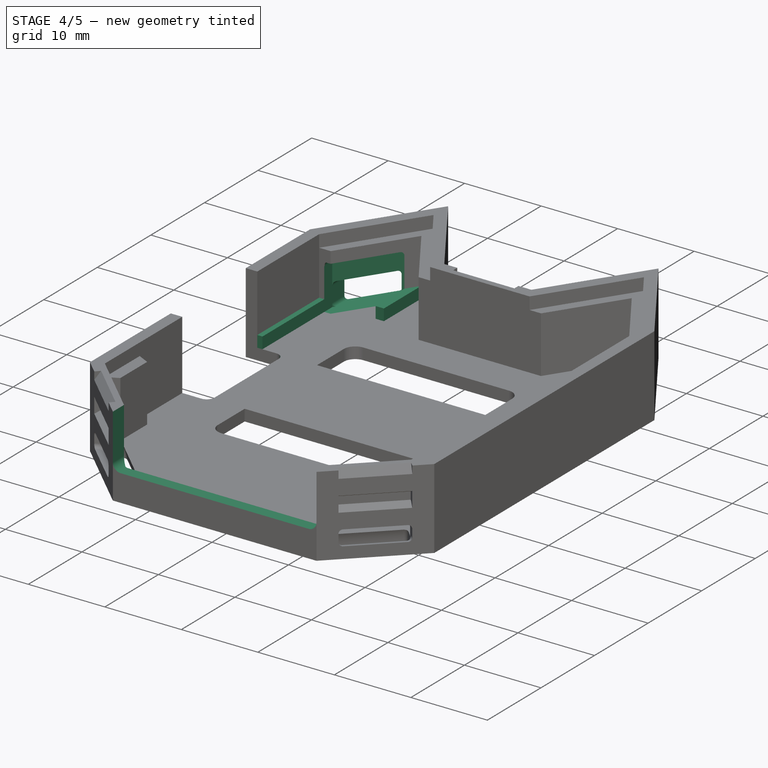
[diagram: stage 4 of 5 — iso view after this stage's code; geometry added in this stage tinted green]
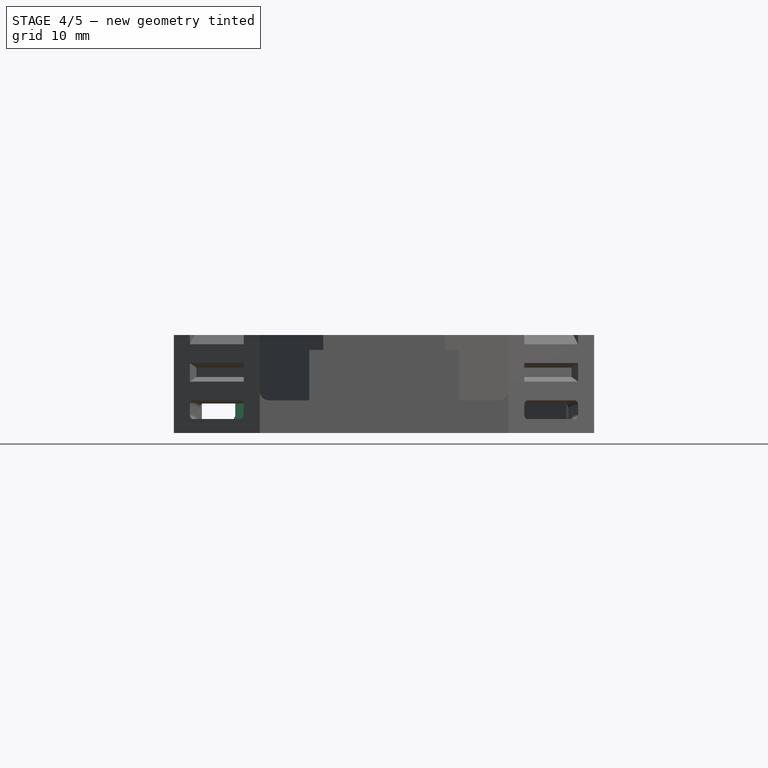
[diagram: stage 4 of 5 — front view after this stage's code; geometry added in this stage tinted green]
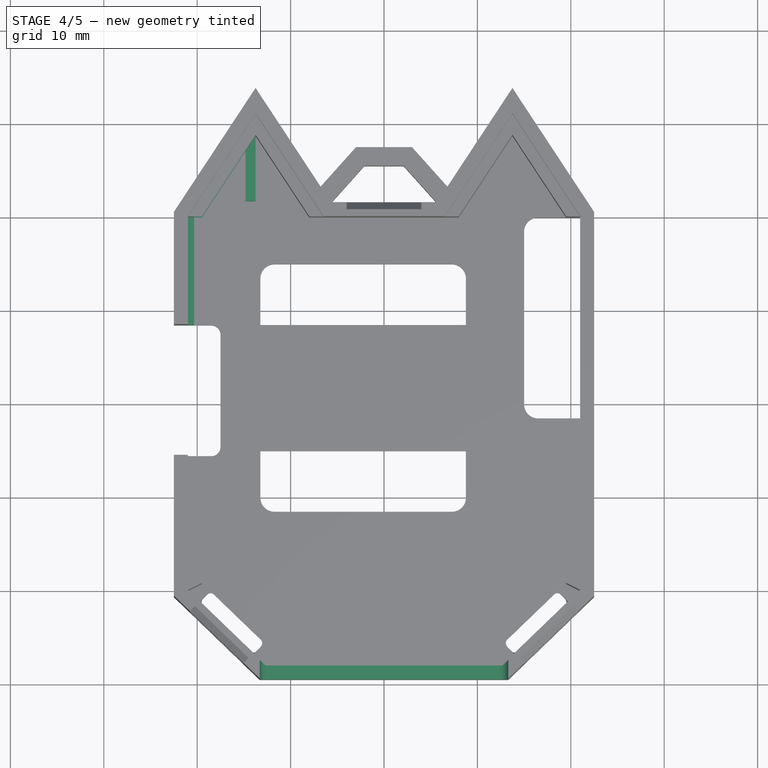
[diagram: stage 4 of 5 — top view after this stage's code; geometry added in this stage tinted green]
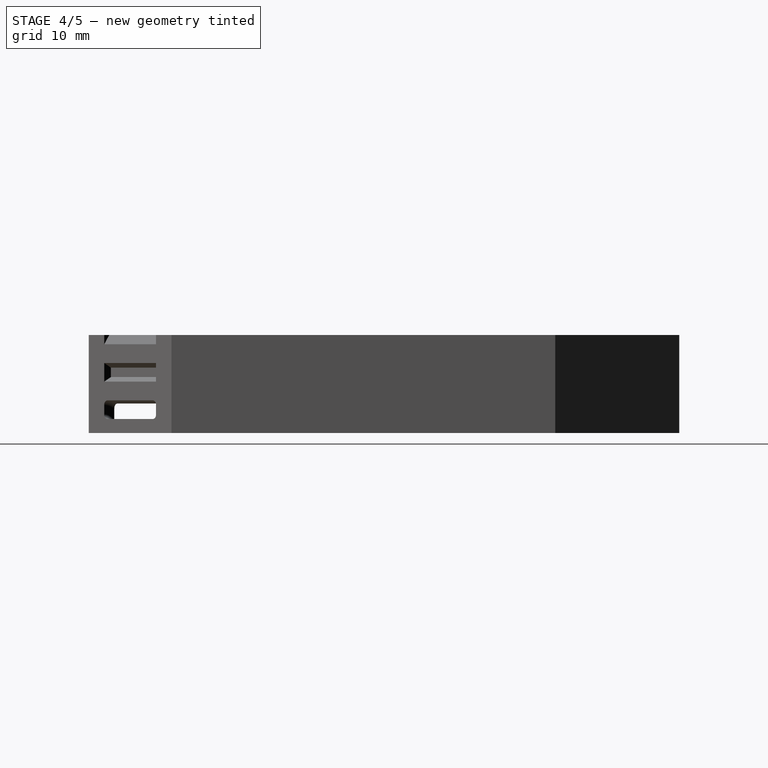
[diagram: stage 4 of 5 — right view after this stage's code; geometry added in this stage tinted green]
FEATURE [PartDesign::Plane] DatumPlane003
  Length = 92.5164
  MapMode = 7
  Placement = pos=(20.2621,-21.7529,10.5) rot=(-0.274352,0.679975,0.679975;3.67712rad)
  ResizeMode = 0
  Support = -> [Mirrored001]
  Width = 62.6394
FEATURE [Sketcher::SketchObject] Sketch022
  ExternalGeometry = -> [Mirrored001]
  FullyConstrained = true
  MapMode = 5
  Placement = pos=(-25.0825,16.5316,0) rot=(-0.355895,0.66081,0.66081;3.82543rad)
  Support = -> [Mirrored001]
  sketch-geometry (14):
    g0: LineSegment StartX=-16.1427 StartY=4.5 StartZ=0 EndX=-9.14274 EndY=4.5 EndZ=0
    g1: LineSegment StartX=-8.64274 StartY=4 StartZ=0 EndX=-8.64274 EndY=2 EndZ=0
    g2: LineSegment StartX=-9.14274 StartY=1.5 StartZ=0 EndX=-16.1427 EndY=1.5 EndZ=0
    g3: LineSegment StartX=-16.6427 StartY=2 StartZ=0 EndX=-16.6427 EndY=4 EndZ=0
    g4: ArcOfCircle CenterX=-16.1427 CenterY=4 CenterZ=0 NormalX=0 NormalY=0 NormalZ=1 AngleXU=0 Radius=0.5 StartAngle=1.5708 EndAngle=3.14159
    g5: GeomPoint X=-16.6427 Y=4.5 Z=0
    g6: ArcOfCircle CenterX=-16.1427 CenterY=2 CenterZ=0 NormalX=0 NormalY=0 NormalZ=1 AngleXU=0 Radius=0.5 StartAngle=3.14159 EndAngle=4.71239
    g7: GeomPoint X=-16.6427 Y=1.5 Z=0
    g8: ArcOfCircle CenterX=-9.14274 CenterY=2 CenterZ=0 NormalX=0 NormalY=0 NormalZ=1 AngleXU=0 Radius=0.5 StartAngle=4.71239 EndAngle=6.28319
    g9: GeomPoint X=-8.64274 Y=1.5 Z=0
    g10: ArcOfCircle CenterX=-9.14274 CenterY=4 CenterZ=0 NormalX=0 NormalY=0 NormalZ=1 AngleXU=0 Radius=0.5 StartAngle=-9e-16 EndAngle=1.5708
    g11: GeomPoint X=-8.64274 Y=4.5 Z=0
    g12: GeomPoint X=-12.6427 Y=3 Z=0
    g13: GeomPoint X=-12.6427 Y=2.3e-15 Z=0
  constraints (30):
    c: Horizontal(g0)
    c: Horizontal(g2)
    c: Vertical(g1)
    c: Vertical(g3)
    c: DistanceY(g9,g11) = 3
    c: DistanceX(g5,g11) = 8
    c: PointOnObject(g5,g3)
    c: PointOnObject(g5,g0)
    c: Tangent(g3,g4) = 1.5708
    c: Tangent(g0,g4) = 1.5708
    c: PointOnObject(g7,g3)
    c: PointOnObject(g7,g2)
    c: Tangent(g3,g6) = 1.5708
    c: Tangent(g2,g6) = 1.5708
    c: PointOnObject(g9,g2)
    c: PointOnObject(g9,g1)
    c: Tangent(g2,g8) = 1.5708
    c: Tangent(g1,g8) = 1.5708
    c: PointOnObject(g11,g0)
    c: PointOnObject(g11,g1)
    c: Tangent(g0,g10) = 1.5708
    c: Tangent(g1,g10) = 1.5708
    c: Equal(g10,g8)
    c: Equal(g8,g4)
    c: Equal(g4,g6)
    c: Radius(g10) = 0.5
    c: Symmetric(g10,g6,g12)
    c: Vertical(g13,g12)
    c: Symmetric(g-4,g-3,g13)
    c: DistanceY(g13,g2) = 1.5
FEATURE [PartDesign::Pocket] Pocket007
  BaseFeature = -> Mirrored001
  Direction = (0,-1,0)
  Length = 5
  Length2 = 5
  Profile = -> Sketch022
  ReferenceAxis = -> Mirrored001 [Edge61]
  Type = 0
FEATURE [Sketcher::SketchObject] Sketch023
  ExternalGeometry = -> [Pocket007]
  FullyConstrained = true
  MapMode = 5
  Placement = pos=(-22.7843,15.0169,0) rot=(0.795526,0.42845,0.42845;1.79758rad)
  Support = -> [Pocket007]
  sketch-geometry (11):
    g0: GeomPoint X=9.46663 Y=3 Z=0
    g1: GeomPoint X=12.4666 Y=3 Z=0
    g2: LineSegment StartX=14.4666 StartY=1.5 StartZ=0 EndX=4.46663 EndY=1.5 EndZ=0
    g3: LineSegment StartX=4.46663 StartY=1.5 StartZ=0 EndX=4.46663 EndY=6.9 EndZ=0
    g4: LineSegment StartX=4.96663 StartY=7.4 StartZ=0 EndX=13.9666 EndY=7.4 EndZ=0
    g5: LineSegment StartX=14.4666 StartY=6.9 StartZ=0 EndX=14.4666 EndY=1.5 EndZ=0
    g6: ArcOfCircle CenterX=4.96663 CenterY=6.9 CenterZ=0 NormalX=0 NormalY=0 NormalZ=1 AngleXU=0 Radius=0.5 StartAngle=1.5708 EndAngle=3.14159
    g7: GeomPoint X=4.46663 Y=7.4 Z=0
    g8: ArcOfCircle CenterX=13.9666 CenterY=6.9 CenterZ=0 NormalX=0 NormalY=0 NormalZ=1 AngleXU=0 Radius=0.5 StartAngle=1.21e-14 EndAngle=1.5708
    g9: GeomPoint X=14.4666 Y=7.4 Z=0
    g10: GeomPoint X=9.46663 Y=1.5 Z=0
  constraints (24):
    c: Symmetric(g-3,g-3,g1)
    c: DistanceX(g0,g1) = 3
    c: Horizontal(g1,g0)
    c: Coincident(g2,g3)
    c: Coincident(g5,g2)
    c: Horizontal(g2)
    c: Horizontal(g4)
    c: Vertical(g3)
    c: Vertical(g5)
    c: PointOnObject(g7,g3)
    c: PointOnObject(g7,g4)
    c: Tangent(g3,g6) = 1.5708
    c: Tangent(g4,g6) = 1.5708
    c: PointOnObject(g9,g4)
    c: PointOnObject(g9,g5)
    c: Tangent(g4,g8) = 1.5708
    c: Tangent(g5,g8) = 1.5708
    c: Equal(g8,g6)
    c: Radius(g8) = 0.5
    c: DistanceX(g2,g2) = 10
    c: Symmetric(g2,g2,g10)
    c: Vertical(g10,g0)
    c: PointOnObject(g2,g-4)
    c: DistanceY(g4,g-6) = 1.5
FEATURE [PartDesign::Pocket] Pocket008
  BaseFeature = -> Pocket007
  Direction = (0,-1,0)
  Length = 1.5
  Length2 = 5
  Profile = -> Sketch023
  ReferenceAxis = -> Pocket007 [Edge65]
  Reversed = true
  Type = 0
FEATURE [Sketcher::SketchObject] Sketch024
  ExternalGeometry = -> [Pocket008]
  FullyConstrained = true
  MapMode = 5
  Placement = pos=(0,0,1.5) rot=(0,0,1;0rad)
  Support = -> [Pocket008]
  sketch-geometry (8):
    g0: LineSegment StartX=-20.3263 StartY=20 StartZ=0 EndX=-21 EndY=20 EndZ=0
    g1: LineSegment StartX=-21 StartY=20 StartZ=0 EndX=-21 EndY=8.44986 EndZ=0
    g2: LineSegment StartX=-21 StartY=8.44986 StartZ=0 EndX=-20.3263 EndY=8.44986 EndZ=0
    g3: LineSegment StartX=-20.3263 StartY=8.44986 StartZ=0 EndX=-20.3263 EndY=20 EndZ=0
    g4: LineSegment StartX=-14.8231 StartY=27.096 StartZ=0 EndX=-13.75 EndY=28.7241 EndZ=0
    g5: LineSegment StartX=-13.75 StartY=28.7241 StartZ=0 EndX=-13.75 EndY=21.7241 EndZ=0
    g6: LineSegment StartX=-13.75 StartY=21.7241 StartZ=0 EndX=-14.8231 EndY=21.7241 EndZ=0
    g7: LineSegment StartX=-14.8231 StartY=21.7241 StartZ=0 EndX=-14.8231 EndY=27.096 EndZ=0
  constraints (20):
    c: Coincident(g0,g1)
    c: Coincident(g1,g2)
    c: Coincident(g2,g3)
    c: Coincident(g3,g0)
    c: Horizontal(g0)
    c: Horizontal(g2)
    c: Vertical(g1)
    c: Vertical(g3)
    c: Coincident(g-3,g0)
    c: Coincident(g1,g-4)
    c: Coincident(g4,g5)
    c: Coincident(g5,g6)
    c: Coincident(g6,g7)
    c: Coincident(g7,g4)
    c: Coincident(g-5,g4)
    c: Coincident(g-5,g4)
    c: Vertical(g5)
    c: Vertical(g7)
    c: Horizontal(g6)
    c: DistanceY(g5,g5) = 7
FEATURE [PartDesign::Pad] Pad003
  BaseFeature = -> Pocket008
  Direction = (0,0,1)
  Length = 1.5
  Length2 = 10
  Profile = -> Sketch024
  ReferenceAxis = -> Sketch024 [N_Axis]
  Type = 0
FEATURE [PartDesign::Fillet] Fillet
  Base = -> Pad003 [Edge114,Edge113]
  BaseFeature = -> Pad003
  Radius = 1
  SupportTransform = false
  UseAllEdges = false
FEATURE [Sketcher::SketchObject] Sketch025
  ExternalGeometry = -> [Fillet]
  FullyConstrained = true
  MapMode = 5
  Placement = pos=(0,-29.5,0) rot=(1,0,0;1.5708rad)
  Support = -> [Fillet]
  sketch-geometry (8):
    g0: LineSegment StartX=-13.3052 StartY=10.5 StartZ=0 EndX=13.3052 EndY=10.5 EndZ=0
    g1: LineSegment StartX=13.3052 StartY=10.5 StartZ=0 EndX=13.3052 EndY=4.5 EndZ=0
    g2: LineSegment StartX=12.3052 StartY=3.5 StartZ=0 EndX=-12.3052 EndY=3.5 EndZ=0
    g3: LineSegment StartX=-13.3052 StartY=4.5 StartZ=0 EndX=-13.3052 EndY=10.5 EndZ=0
    g4: ArcOfCircle CenterX=-12.3052 CenterY=4.5 CenterZ=0 NormalX=0 NormalY=0 NormalZ=1 AngleXU=0 Radius=1 StartAngle=3.14159 EndAngle=4.71239
    g5: GeomPoint X=-13.3052 Y=3.5 Z=0
    g6: ArcOfCircle CenterX=12.3052 CenterY=4.5 CenterZ=0 NormalX=0 NormalY=0 NormalZ=1 AngleXU=0 Radius=1 StartAngle=4.71239 EndAngle=6.28319
    g7: GeomPoint X=13.3052 Y=3.5 Z=0
  constraints (18):
    c: Coincident(g0,g1)
    c: Coincident(g3,g0)
    c: Horizontal(g2)
    c: Vertical(g1)
    c: Vertical(g3)
    c: PointOnObject(g5,g3)
    c: PointOnObject(g5,g2)
    c: Tangent(g3,g4) = 1.5708
    c: Tangent(g2,g4) = 1.5708
    c: PointOnObject(g7,g1)
    c: PointOnObject(g7,g2)
    c: Tangent(g1,g6) = 1.5708
    c: Tangent(g2,g6) = 1.5708
    c: Equal(g4,g6)
    c: Radius(g6) = 1
    c: Symmetric(g0,g0,g-2)
    c: Coincident(g0,g-3)
    c: DistanceY(g5,g0) = 7
FEATURE [PartDesign::Pocket] Pocket009
  BaseFeature = -> Fillet
  Direction = (0,1,-2e-16)
  Length = 5
  Length2 = 5
  Profile = -> Sketch025
  ReferenceAxis = -> Sketch025 [N_Axis]
  Type = 0
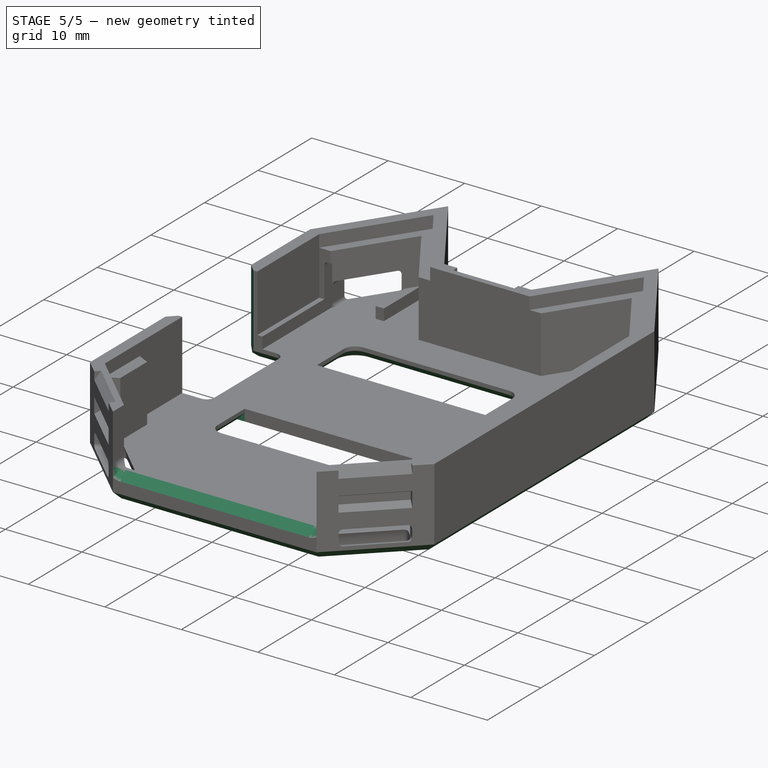
[diagram: stage 5 of 5 — iso view after this stage's code; geometry added in this stage tinted green]
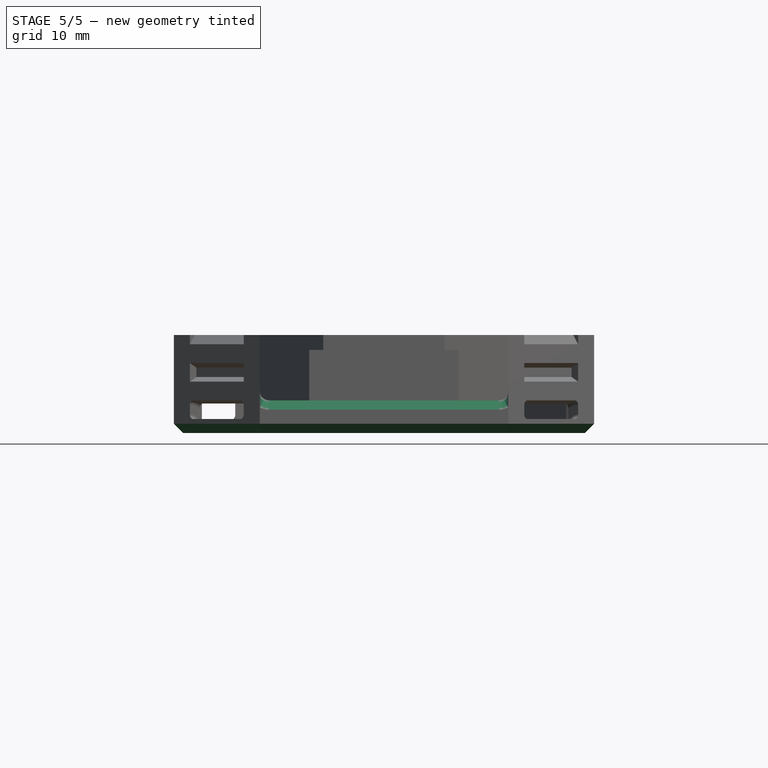
[diagram: stage 5 of 5 — front view after this stage's code; geometry added in this stage tinted green]
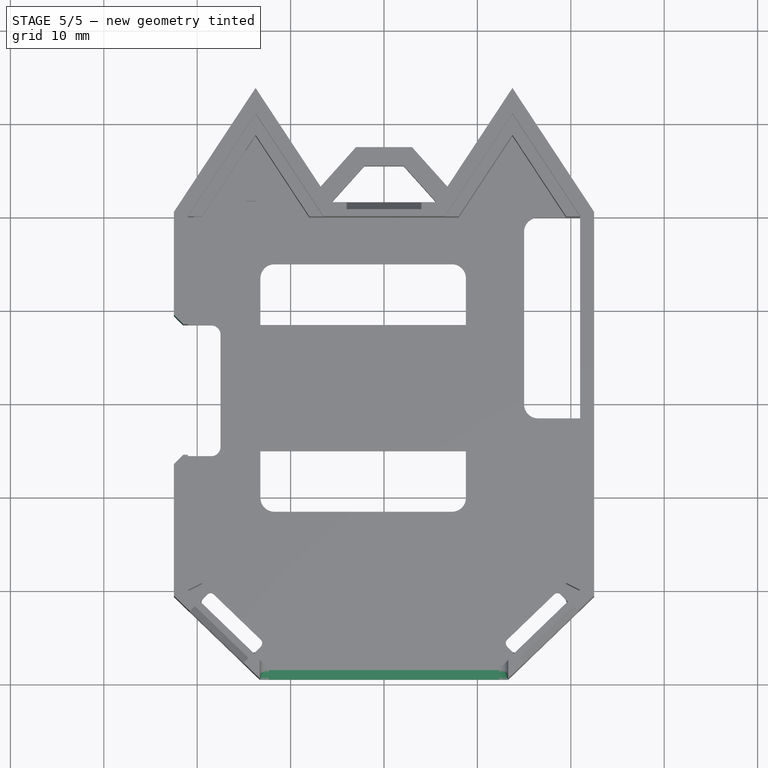
[diagram: stage 5 of 5 — top view after this stage's code; geometry added in this stage tinted green]
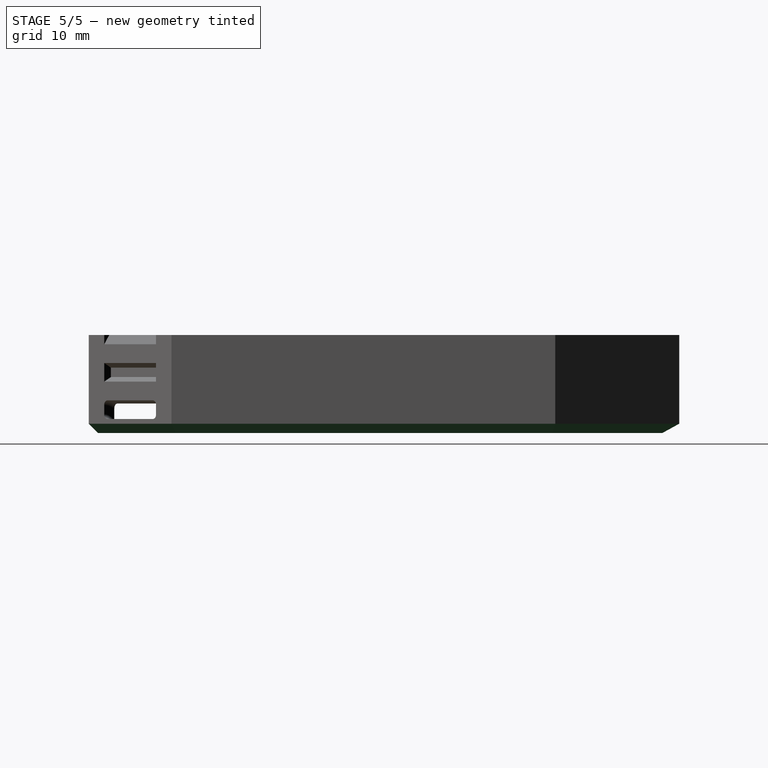
[diagram: stage 5 of 5 — right view after this stage's code; geometry added in this stage tinted green]
FEATURE [PartDesign::Chamfer] Chamfer
  Angle = 45
  Base = -> Pocket009 [Edge3,Edge5,Edge7,Edge15,Edge17,Edge18,Edge10,Edge1,Edge2,Edge4,Edge8,Edge6,Edge16,Edge14,Edge12]
  BaseFeature = -> Pocket009
  ChamferType = 0
  FlipDirection = false
  Size = 1
  Size2 = 1
  SupportTransform = false
  UseAllEdges = false
FEATURE [PartDesign::Chamfer] Chamfer001
  Angle = 45
  Base = -> Chamfer [Edge277]
  BaseFeature = -> Chamfer
  ChamferType = 0
  FlipDirection = false
  Size = 1
  Size2 = 1
  SupportTransform = false
  UseAllEdges = false
FEATURE [PartDesign::Chamfer] Chamfer002
  Angle = 45
  Base = -> Chamfer001 [Edge184,Edge301]
  BaseFeature = -> Chamfer001
  ChamferType = 0
  FlipDirection = false
  Size = 1
  Size2 = 1
  SupportTransform = false
  UseAllEdges = false
FEATURE [PartDesign::Chamfer] Chamfer003
  Angle = 45
  Base = -> Chamfer002 [Edge282,Edge270]
  BaseFeature = -> Chamfer002
  ChamferType = 0
  FlipDirection = false
  Size = 1
  Size2 = 1
  SupportTransform = false
  UseAllEdges = false
FEATURE [PartDesign::Body] Body
  Group = -> [Sketch,Pad,Pocket,Sketch001,Pad001,Sketch006,Sketch007,Sketch008,Pocket001,Pocket002,Pocket003,DatumPlane001,Sketch017,Pad002,Sketch018,Pocket004,Sketch019,Groove,Mirrored,DatumPlane,Sketch020,Pocket005,DatumPlane002,Sketch021,Pocket006,Mirrored001,DatumPlane003,Sketch022,Pocket007,Sketch023,Pocket008,Sketch024,Pad003,Fillet,Sketch025,Pocket009,Chamfer,Chamfer001,Chamfer002,Chamfer003]
  Origin = -> Origin
  Tip = -> Chamfer003
FEATURE [Part::Feature] Part__Feature  label="SOLID"
  shape: bbox 4.95 x 5.35 x 1.7 mm, 58 faces (baked)
FEATURE [App::Part] NeoPixel_WS28128B  label="NeoPixel-WS28128B"
  Group = -> [Part__Feature]
  Origin = -> Origin001
  Placement = pos=(-12,-22.5,1.63) rot=(0,0,-1;1.5708rad)
FEATURE [Part::Feature] Part__Feature001  label="SOLID001"
  shape: bbox 8.052 x 2.515 x 3.658 mm, 48 faces (baked)
FEATURE [App::Part] Button_3x6x2_5mm  label="Button-3x6x2.5mm"
  Group = -> [Part__Feature001]
  Origin = -> Origin002
  Placement = pos=(6,-18.5,1.63) rot=(1,0,0;1.5708rad)
FEATURE [Part::Feature] Part__Feature002  label="SOLID002"
  shape: bbox 8.052 x 2.515 x 3.658 mm, 48 faces (baked)
FEATURE [App::Part] Button_3x6x2_5mm001  label="Button-3x6x2.5mm001"
  Group = -> [Part__Feature002]
  Origin = -> Origin003
  Placement = pos=(6,-26.5,1.63) rot=(1,0,0;1.5708rad)
FEATURE [Part::Feature] Part__Feature003  label="SOLID003"
  shape: bbox 8.052 x 2.515 x 3.658 mm, 48 faces (baked)
FEATURE [App::Part] Button_3x6x2_5mm002  label="Button-3x6x2.5mm002"
  Group = -> [Part__Feature003]
  Origin = -> Origin004
  Placement = pos=(0,-22.5,1.63) rot=(1,0,0;1.5708rad)
FEATURE [Part::Feature] Part__Feature004  label="SOLID004"
  shape: bbox 8.052 x 2.515 x 3.658 mm, 48 faces (baked)
FEATURE [App::Part] Button_3x6x2_5mm003  label="Button-3x6x2.5mm003"
  Group = -> [Part__Feature004]
  Origin = -> Origin005
  Placement = pos=(12,-22.5,1.63) rot=(1,0,0;1.5708rad)
FEATURE [Part::Feature] Part__Feature005  label="SOLID005"
  shape: bbox 6 x 2.96 x 4.95 mm, 89 faces (baked)
FEATURE [App::Part] QWIIC_JST_SH_4P  label="QWIIC-JST-SH-4P"
  Group = -> [Part__Feature005]
  Origin = -> Origin006
  Placement = pos=(-7.35,-9.35,-0.05) rot=(-1,0,0;1.5708rad)
FEATURE [Part::Feature] Part__Feature006  label="COMPOUND"
  shape: bbox 4.7 x 2.3 x 2.65 mm, 62 faces (baked)
FEATURE [Part::Feature] Part__Feature007  label="COMPOUND001"
  shape: bbox 1.95 x 0.85 x 1.2 mm, 6 faces (baked)
FEATURE [App::Part] COMPOUND  label="COMPOUND002"
  Group = -> [Part__Feature006,Part__Feature007]
  Origin = -> Origin007
FEATURE [App::Part] Switch_1TS003B  label="Switch-1TS003B"
  Group = -> [COMPOUND]
  Origin = -> Origin008
  Placement = pos=(18.55,-5.95,-0.05) rot=(0.57735,0.57735,-0.57735;4.18879rad)
FEATURE [Part::Feature] Part__Feature008  label="COMPOUND003"
  shape: bbox 0.5 x 2 x 3.3 mm, 6 faces (baked)
FEATURE [Part::Feature] Part__Feature009  label="COMPOUND004"
  shape: bbox 0.5 x 3.35 x 8.2 mm, 22 faces (baked)
FEATURE [Part::Feature] Part__Feature010  label="COMPOUND005"
  shape: bbox 0.5 x 3.35 x 8.2 mm, 22 faces (baked)
FEATURE [Part::Feature] Part__Feature011  label="COMPOUND006"
  shape: bbox 9.9 x 4.8 x 7.6 mm, 69 faces (baked)
FEATURE [Part::Feature] Part__Feature012  label="COMPOUND007"
  shape: bbox 0.5 x 3.35 x 8.2 mm, 22 faces (baked)
FEATURE [Part::Feature] Part__Feature013  label="COMPOUND008"
  shape: bbox 0.5 x 2 x 3.3 mm, 6 faces (baked)
FEATURE [App::Part] COMPOUND001  label="COMPOUND009"
  Group = -> [Part__Feature008,Part__Feature009,Part__Feature010,Part__Feature011,Part__Feature012,Part__Feature013]
  Origin = -> Origin009
FEATURE [App::Part] JST_PH_3P  label="JST-PH-3P"
  Group = -> [COMPOUND001]
  Origin = -> Origin010
  Placement = pos=(5.2865,-29.25,-0.05) rot=(0,0.707107,-0.707107;3.14159rad)
FEATURE [Part::Feature] Part__Feature014  label="v3.1-DevKitty PCB"
  shape: bbox 41.99 x 58.99 x 1.58 mm, 48 faces (baked)
FEATURE [App::Part] v3_1_Nugget_1  label="v3.1-Nugget 1"
  Group = -> [NeoPixel_WS28128B,Button_3x6x2_5mm,Button_3x6x2_5mm001,Button_3x6x2_5mm002,Button_3x6x2_5mm003,QWIIC_JST_SH_4P,Switch_1TS003B,JST_PH_3P,Part__Feature014]
  Origin = -> Origin011
  Placement = pos=(0,1.5,9) rot=(0,0,1;0rad)
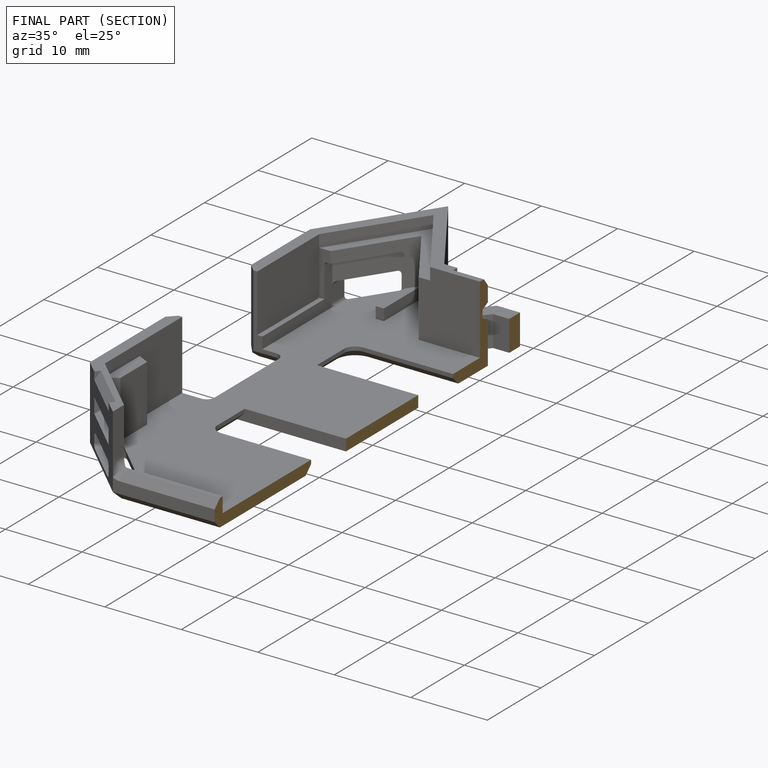
[diagram: finished part — half-section view (interior)]
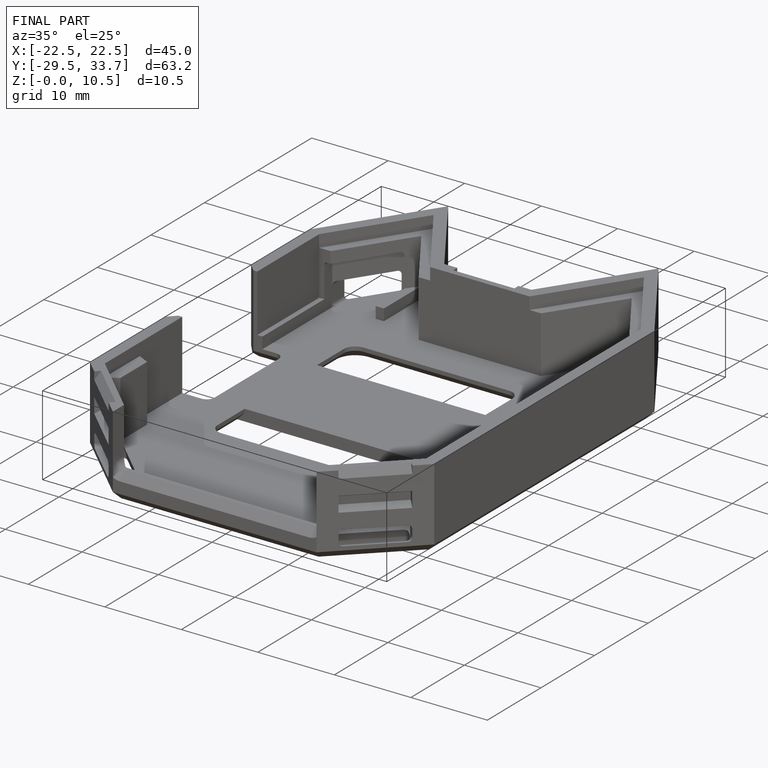
[diagram: finished part — iso view with bounding-box wireframe]
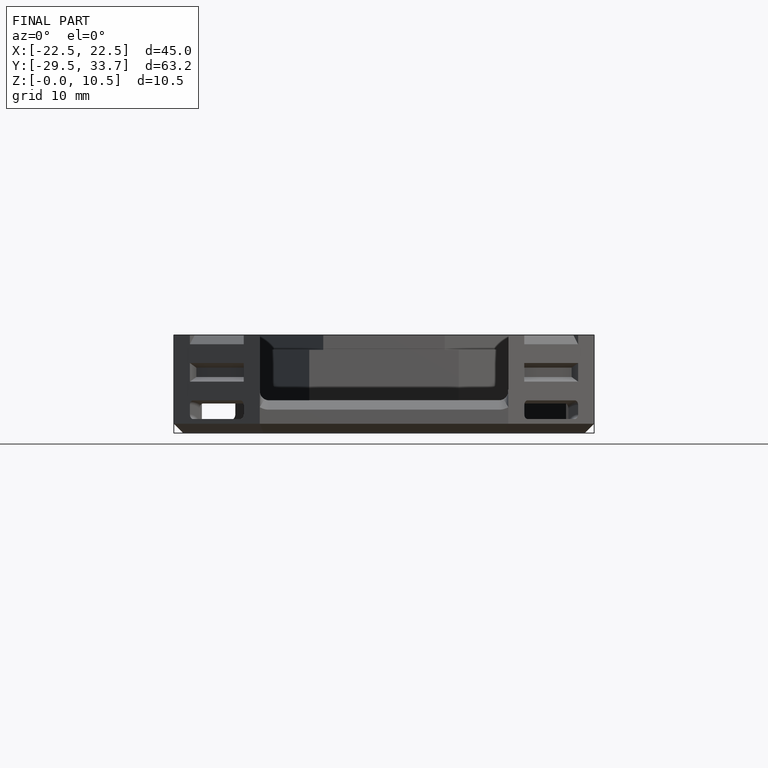
[diagram: finished part — front view with bounding-box wireframe]
